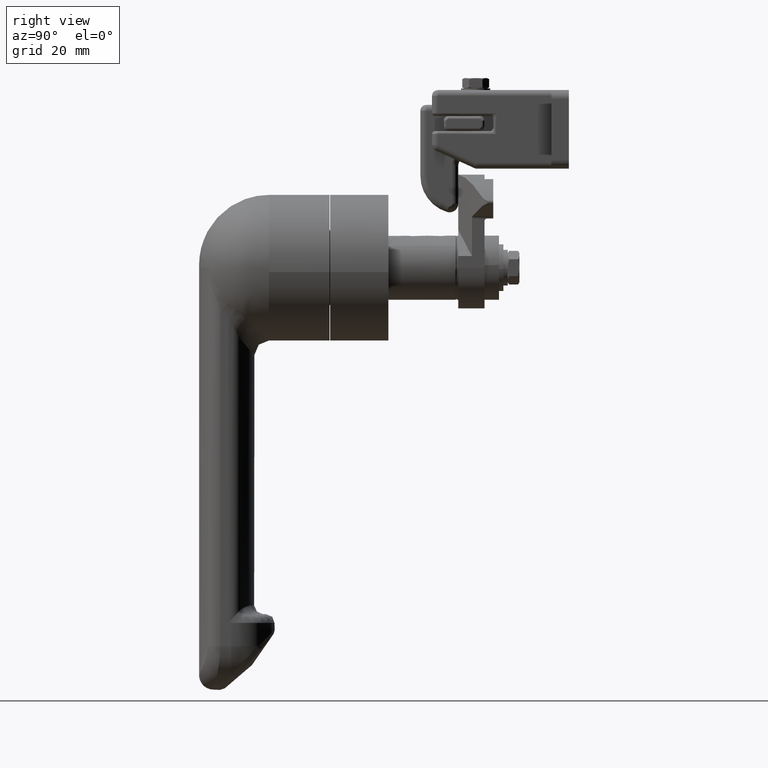
[diagram: clean part render]
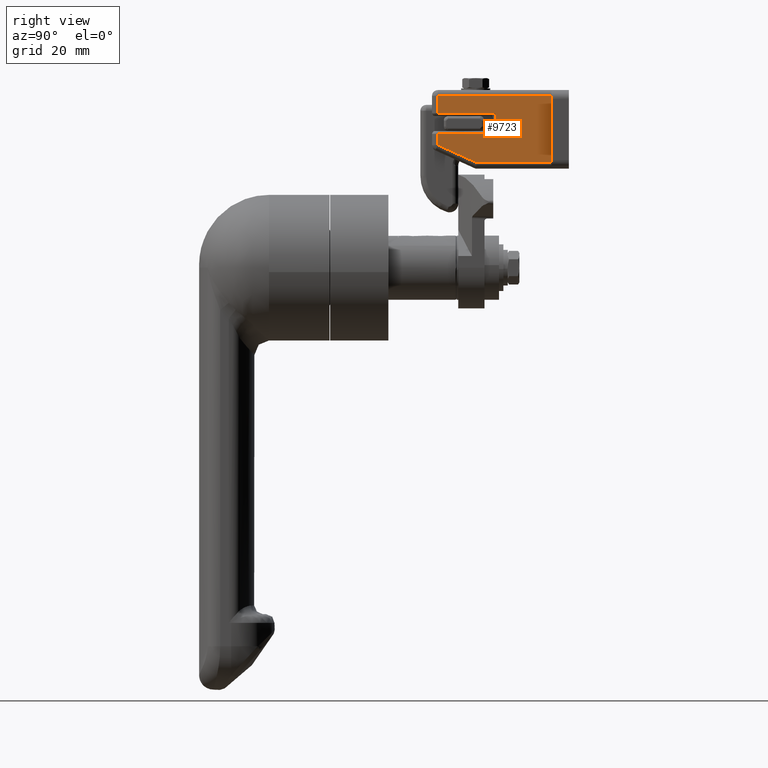
[diagram: same view with one face highlighted and labeled with its STEP entity id]
A machine part, right view. The second image highlights one B-rep face of the part: STEP entity #9723.
In plain terms, the highlighted face is a freeform B-spline surface patch.
Its self-contained STEP definition (entity closure, byte-faithful):
#8317=CARTESIAN_POINT('',(4.749999999966720,12.999999999123800,45.899999999962091));
#8318=VERTEX_POINT('',#8317);
#8319=CARTESIAN_POINT('',(4.749999999966720,-7.000000000826603,45.899999999951270));
#8320=VERTEX_POINT('',#8319);
#8321=CARTESIAN_POINT('',(4.749999999966720,12.999999999123800,45.899999999962091));
#8322=CARTESIAN_POINT('',(4.749999999966720,-7.000000000826603,45.899999999951270));
#8323=QUASI_UNIFORM_CURVE('',1,(#8321,#8322),.UNSPECIFIED.,.F.,.U.);
#8324=EDGE_CURVE('',#8318,#8320,#8323,.T.);
#8579=CARTESIAN_POINT('',(4.749999999966720,-7.000000000826603,58.999999999670159));
#8580=VERTEX_POINT('',#8579);
#8792=CARTESIAN_POINT('',(4.749999999966720,-7.000000000826603,42.101772780151769));
#8793=VERTEX_POINT('',#8792);
#8861=CARTESIAN_POINT('',(4.749999999966720,-7.000000000826603,45.899999999951270));
#8862=CARTESIAN_POINT('',(4.749999999966720,-7.000000000826603,42.101772780151769));
#8863=QUASI_UNIFORM_CURVE('',1,(#8861,#8862),.UNSPECIFIED.,.F.,.U.);
#8864=EDGE_CURVE('',#8320,#8793,#8863,.T.);
#8897=CARTESIAN_POINT('',(4.749999999966720,6.432952589162301,35.999999999670138));
#8898=VERTEX_POINT('',#8897);
#8912=CARTESIAN_POINT('',(4.749999999966720,-7.000000000826603,42.101772780151769));
#8913=CARTESIAN_POINT('',(4.749999999966720,6.432952589162301,35.999999999670138));
#8914=QUASI_UNIFORM_CURVE('',1,(#8912,#8913),.UNSPECIFIED.,.F.,.U.);
#8915=EDGE_CURVE('',#8793,#8898,#8914,.T.);
#8942=CARTESIAN_POINT('',(4.749999999966720,-7.000000000826603,53.099999999951152));
#8943=VERTEX_POINT('',#8942);
#8957=CARTESIAN_POINT('',(4.749999999966720,-7.000000000826603,58.999999999670159));
#8958=CARTESIAN_POINT('',(4.749999999966720,-7.000000000826603,53.099999999951152));
#8959=QUASI_UNIFORM_CURVE('',1,(#8957,#8958),.UNSPECIFIED.,.F.,.U.);
#8960=EDGE_CURVE('',#8580,#8943,#8959,.T.);
#9005=CARTESIAN_POINT('',(4.749999999966720,31.999999999948201,35.999999999670138));
#9006=VERTEX_POINT('',#9005);
#9007=CARTESIAN_POINT('',(4.749999999966720,6.432952589162301,35.999999999670138));
#9008=CARTESIAN_POINT('',(4.749999999966720,31.999999999948201,35.999999999670138));
#9009=QUASI_UNIFORM_CURVE('',1,(#9007,#9008),.UNSPECIFIED.,.F.,.U.);
#9010=EDGE_CURVE('',#8898,#9006,#9009,.T.);
#9072=CARTESIAN_POINT('',(4.749999999966720,31.999999999948201,58.999999999670159));
#9073=VERTEX_POINT('',#9072);
#9074=CARTESIAN_POINT('',(4.749999999966720,31.999999999948201,58.999999999670159));
#9075=CARTESIAN_POINT('',(4.749999999966720,-7.000000000826603,58.999999999670159));
#9076=QUASI_UNIFORM_CURVE('',1,(#9074,#9075),.UNSPECIFIED.,.F.,.U.);
#9077=EDGE_CURVE('',#9073,#8580,#9076,.T.);
#9682=CARTESIAN_POINT('',(4.749999999966720,31.999999999948201,58.999999999670159));
#9683=CARTESIAN_POINT('',(4.749999999966720,31.999999999948201,35.999999999670138));
#9684=QUASI_UNIFORM_CURVE('',1,(#9682,#9683),.UNSPECIFIED.,.F.,.U.);
#9685=EDGE_CURVE('',#9073,#9006,#9684,.T.);
#9697=CARTESIAN_POINT('',(4.749999999966720,33.948049924397338,34.851150044248612));
#9698=CARTESIAN_POINT('',(4.749999999966720,-8.948050971337260,34.851150044248612));
#9699=CARTESIAN_POINT('',(4.749999999966720,33.948049924397338,60.148850571999773));
#9700=CARTESIAN_POINT('',(4.749999999966720,-8.948050971337260,60.148850571999773));
#9701=B_SPLINE_SURFACE_WITH_KNOTS('',1,1,((#9697,#9699),(#9698,#9700)),.UNSPECIFIED.,.F.,.F.,.U.,(2,2),(2,2),(0.0,42.896100895734591),(0.0,25.297700527751172),.UNSPECIFIED.);
#9702=CARTESIAN_POINT('',(4.749999999966720,12.999999999123800,53.099999999962229));
#9703=VERTEX_POINT('',#9702);
#9704=CARTESIAN_POINT('',(4.749999999966720,-7.000000000826603,53.099999999951152));
#9705=CARTESIAN_POINT('',(4.749999999966720,12.999999999123800,53.099999999962229));
#9706=QUASI_UNIFORM_CURVE('',1,(#9704,#9705),.UNSPECIFIED.,.F.,.U.);
#9707=EDGE_CURVE('',#8943,#9703,#9706,.T.);
#9708=ORIENTED_EDGE('',*,*,#9707,.T.);
#9709=CARTESIAN_POINT('',(4.749999999966720,12.999999999123800,53.099999999962229));
#9710=CARTESIAN_POINT('',(4.749999999966720,12.999999999123800,45.899999999962091));
#9711=QUASI_UNIFORM_CURVE('',1,(#9709,#9710),.UNSPECIFIED.,.F.,.U.);
#9712=EDGE_CURVE('',#9703,#8318,#9711,.T.);
#9713=ORIENTED_EDGE('',*,*,#9712,.T.);
#9714=ORIENTED_EDGE('',*,*,#8324,.T.);
#9715=ORIENTED_EDGE('',*,*,#8864,.T.);
#9716=ORIENTED_EDGE('',*,*,#8915,.T.);
#9717=ORIENTED_EDGE('',*,*,#9010,.T.);
#9718=ORIENTED_EDGE('',*,*,#9685,.F.);
#9719=ORIENTED_EDGE('',*,*,#9077,.T.);
#9720=ORIENTED_EDGE('',*,*,#8960,.T.);
#9721=EDGE_LOOP('',(#9708,#9713,#9714,#9715,#9716,#9717,#9718,#9719,#9720));
#9722=FACE_OUTER_BOUND('',#9721,.T.);
#9723=ADVANCED_FACE('',(#9722),#9701,.F.);